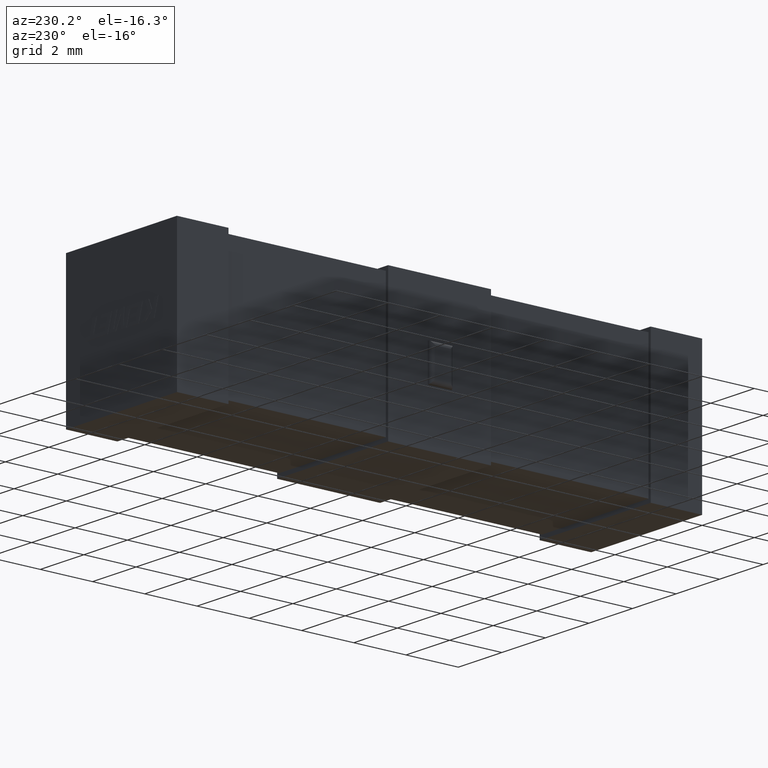
[diagram: clean part render]
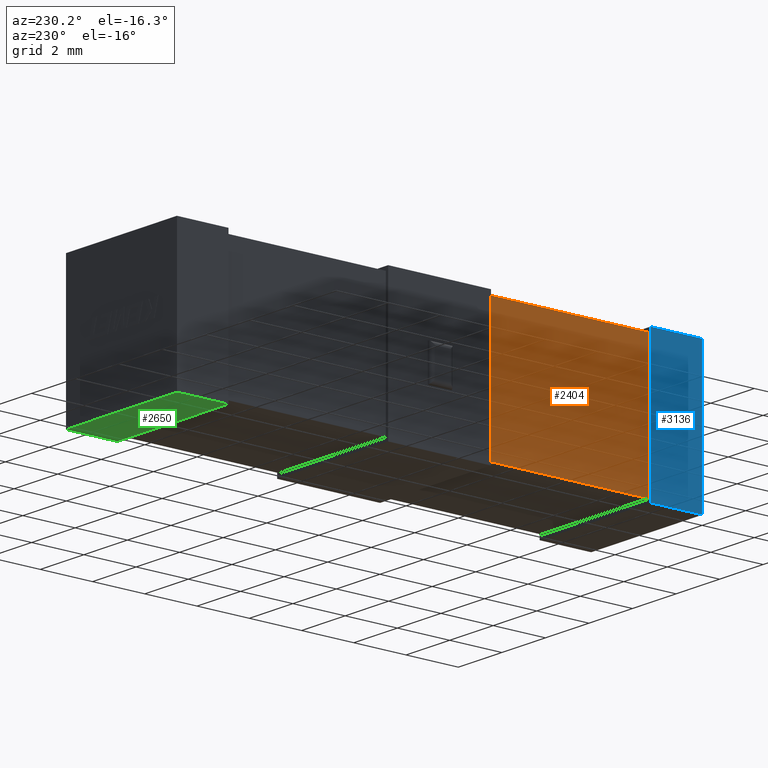
[diagram: same view with three faces highlighted in distinct colors, each labeled with its STEP entity id]
A machine part, auxiliary view with three faces highlighted in distinct colors.
Their STEP definitions:

[orange] entity #2404 — the highlighted planar face has unit normal (-1, 0, 0).
#43 = EDGE_CURVE ( 'NONE', #3292, #1647, #2640, .T. ) ;
#114 = LINE ( 'NONE', #1145, #2983 ) ;
#115 = DIRECTION ( 'NONE',  ( 0.0000000000000000000, 1.000000000000000000, 1.242048835984310900E-016 ) ) ;
#341 = VECTOR ( 'NONE', #115, 1000.000000000000000 ) ;
#485 = AXIS2_PLACEMENT_3D ( 'NONE', #3218, #612, #2172 ) ;
#612 = DIRECTION ( 'NONE',  ( -1.000000000000000000, 0.0000000000000000000, 0.0000000000000000000 ) ) ;
#620 = CARTESIAN_POINT ( 'NONE',  ( 0.09999999999999913100, 8.080199999999999600, 0.1500000000000028500 ) ) ;
#755 = CARTESIAN_POINT ( 'NONE',  ( 0.09999999999999913100, 8.080199999999999600, 5.250000000000000000 ) ) ;
#787 = EDGE_CURVE ( 'NONE', #1647, #3370, #2924, .T. ) ;
#866 = ORIENTED_EDGE ( 'NONE', *, *, #1671, .F. ) ;
#922 = EDGE_LOOP ( 'NONE', ( #866, #2451, #3340, #973 ) ) ;
#973 = ORIENTED_EDGE ( 'NONE', *, *, #43, .F. ) ;
#1056 = VERTEX_POINT ( 'NONE', #1254 ) ;
#1145 = CARTESIAN_POINT ( 'NONE',  ( 0.09999999999999913100, 8.080199999999999600, 5.250000000000000000 ) ) ;
#1210 = DIRECTION ( 'NONE',  ( 0.0000000000000000000, 8.503546450866705700E-017, -1.000000000000000000 ) ) ;
#1250 = CARTESIAN_POINT ( 'NONE',  ( 0.09999999999999913100, 1.969800000000000700, 0.1500000000000021000 ) ) ;
#1254 = CARTESIAN_POINT ( 'NONE',  ( 0.09999999999999913100, 8.080199999999999600, 5.250000000000000000 ) ) ;
#1647 = VERTEX_POINT ( 'NONE', #1250 ) ;
#1671 = EDGE_CURVE ( 'NONE', #1056, #3292, #2409, .T. ) ;
#1700 = VECTOR ( 'NONE', #3335, 1000.000000000000000 ) ;
#1949 = PLANE ( 'NONE',  #485 ) ;
#2136 = VECTOR ( 'NONE', #1210, 1000.000000000000000 ) ;
#2172 = DIRECTION ( 'NONE',  ( 0.0000000000000000000, 0.0000000000000000000, -1.000000000000000000 ) ) ;
#2181 = CARTESIAN_POINT ( 'NONE',  ( 0.09999999999999913100, 1.969800000000000200, 5.249999999999999100 ) ) ;
#2191 = DIRECTION ( 'NONE',  ( 0.0000000000000000000, 0.0000000000000000000, 1.000000000000000000 ) ) ;
#2404 = ADVANCED_FACE ( 'NONE', ( #2906 ), #1949, .T. ) ;
#2409 = LINE ( 'NONE', #755, #1700 ) ;
#2451 = ORIENTED_EDGE ( 'NONE', *, *, #2489, .F. ) ;
#2489 = EDGE_CURVE ( 'NONE', #3370, #1056, #114, .T. ) ;
#2640 = LINE ( 'NONE', #3019, #2136 ) ;
#2906 = FACE_OUTER_BOUND ( 'NONE', #922, .T. ) ;
#2924 = LINE ( 'NONE', #620, #341 ) ;
#2983 = VECTOR ( 'NONE', #2191, 1000.000000000000000 ) ;
#3019 = CARTESIAN_POINT ( 'NONE',  ( 0.09999999999999913100, 1.969800000000000200, 5.249999999999999100 ) ) ;
#3218 = CARTESIAN_POINT ( 'NONE',  ( 0.09999999999999913100, 0.0000000000000000000, 0.0000000000000000000 ) ) ;
#3283 = CARTESIAN_POINT ( 'NONE',  ( 0.09999999999999913100, 8.080199999999999600, 0.1500000000000028500 ) ) ;
#3292 = VERTEX_POINT ( 'NONE', #2181 ) ;
#3335 = DIRECTION ( 'NONE',  ( -0.0000000000000000000, -1.000000000000000000, -1.419484383982069700E-016 ) ) ;
#3340 = ORIENTED_EDGE ( 'NONE', *, *, #787, .F. ) ;
#3370 = VERTEX_POINT ( 'NONE', #3283 ) ;

[blue] entity #3136 — the highlighted planar face has unit normal (1, 0, 0).
#30 = CARTESIAN_POINT ( 'NONE',  ( 0.0000000000000000000, 0.0000000000000000000, 5.400000000000000400 ) ) ;
#41 = CARTESIAN_POINT ( 'NONE',  ( 0.0000000000000000000, 0.0000000000000000000, 5.400000000000000400 ) ) ;
#248 = CARTESIAN_POINT ( 'NONE',  ( 0.0000000000000000000, 0.0000000000000000000, 0.0000000000000000000 ) ) ;
#335 = CARTESIAN_POINT ( 'NONE',  ( 0.0000000000000000000, 0.0000000000000000000, 5.400000000000000400 ) ) ;
#404 = VECTOR ( 'NONE', #3207, 1000.000000000000000 ) ;
#489 = VECTOR ( 'NONE', #2649, 1000.000000000000000 ) ;
#520 = CARTESIAN_POINT ( 'NONE',  ( 2.220309139790134300E-015, 1.969800000000000700, 5.250000000000000000 ) ) ;
#583 = DIRECTION ( 'NONE',  ( 0.0000000000000000000, 0.0000000000000000000, -1.000000000000000000 ) ) ;
#600 = DIRECTION ( 'NONE',  ( -0.0000000000000000000, -1.000000000000000000, -0.0000000000000000000 ) ) ;
#622 = FACE_OUTER_BOUND ( 'NONE', #3107, .T. ) ;
#688 = VECTOR ( 'NONE', #600, 1000.000000000000000 ) ;
#739 = EDGE_CURVE ( 'NONE', #1340, #1512, #1201, .T. ) ;
#991 = LINE ( 'NONE', #335, #688 ) ;
#1083 = LINE ( 'NONE', #41, #404 ) ;
#1115 = ORIENTED_EDGE ( 'NONE', *, *, #3199, .F. ) ;
#1201 = LINE ( 'NONE', #520, #489 ) ;
#1216 = ORIENTED_EDGE ( 'NONE', *, *, #1304, .F. ) ;
#1304 = EDGE_CURVE ( 'NONE', #1512, #2354, #991, .T. ) ;
#1340 = VERTEX_POINT ( 'NONE', #1381 ) ;
#1352 = ORIENTED_EDGE ( 'NONE', *, *, #1814, .T. ) ;
#1381 = CARTESIAN_POINT ( 'NONE',  ( 2.220309139790134300E-015, 1.969800000000000700, 1.734723475976807100E-015 ) ) ;
#1382 = VERTEX_POINT ( 'NONE', #2418 ) ;
#1512 = VERTEX_POINT ( 'NONE', #2717 ) ;
#1518 = AXIS2_PLACEMENT_3D ( 'NONE', #1851, #2645, #583 ) ;
#1814 = EDGE_CURVE ( 'NONE', #1340, #1382, #1868, .T. ) ;
#1851 = CARTESIAN_POINT ( 'NONE',  ( 0.0000000000000000000, 0.0000000000000000000, 5.400000000000000400 ) ) ;
#1868 = LINE ( 'NONE', #248, #2281 ) ;
#1946 = ORIENTED_EDGE ( 'NONE', *, *, #739, .F. ) ;
#2281 = VECTOR ( 'NONE', #2573, 1000.000000000000000 ) ;
#2354 = VERTEX_POINT ( 'NONE', #30 ) ;
#2418 = CARTESIAN_POINT ( 'NONE',  ( 0.0000000000000000000, 0.0000000000000000000, 0.0000000000000000000 ) ) ;
#2573 = DIRECTION ( 'NONE',  ( -0.0000000000000000000, -1.000000000000000000, -0.0000000000000000000 ) ) ;
#2645 = DIRECTION ( 'NONE',  ( 1.000000000000000000, 0.0000000000000000000, 0.0000000000000000000 ) ) ;
#2649 = DIRECTION ( 'NONE',  ( -0.0000000000000000000, -0.0000000000000000000, 1.000000000000000000 ) ) ;
#2717 = CARTESIAN_POINT ( 'NONE',  ( 0.0000000000000000000, 1.969800000000000700, 5.400000000000000400 ) ) ;
#3107 = EDGE_LOOP ( 'NONE', ( #1946, #1352, #1115, #1216 ) ) ;
#3111 = PLANE ( 'NONE',  #1518 ) ;
#3136 = ADVANCED_FACE ( 'NONE', ( #622 ), #3111, .F. ) ;
#3199 = EDGE_CURVE ( 'NONE', #2354, #1382, #1083, .T. ) ;
#3207 = DIRECTION ( 'NONE',  ( -0.0000000000000000000, -0.0000000000000000000, -1.000000000000000000 ) ) ;

[green] entity #2650 — the highlighted planar face has unit normal (0, 0, -1).
#91 = CARTESIAN_POINT ( 'NONE',  ( 0.0000000000000000000, 20.10000000000000100, 0.0000000000000000000 ) ) ;
#198 = CARTESIAN_POINT ( 'NONE',  ( 0.0000000000000000000, 18.13019999999999900, 0.0000000000000000000 ) ) ;
#221 = DIRECTION ( 'NONE',  ( 0.0000000000000000000, 0.0000000000000000000, -1.000000000000000000 ) ) ;
#236 = ORIENTED_EDGE ( 'NONE', *, *, #1788, .F. ) ;
#405 = EDGE_CURVE ( 'NONE', #2815, #2941, #2494, .T. ) ;
#433 = CARTESIAN_POINT ( 'NONE',  ( 0.0000000000000000000, 0.0000000000000000000, 0.0000000000000000000 ) ) ;
#696 = DIRECTION ( 'NONE',  ( -0.0000000000000000000, -1.000000000000000000, -0.0000000000000000000 ) ) ;
#867 = AXIS2_PLACEMENT_3D ( 'NONE', #2295, #221, #2015 ) ;
#1008 = CARTESIAN_POINT ( 'NONE',  ( 5.100000000000000500, 0.0000000000000000000, 0.0000000000000000000 ) ) ;
#1233 = CARTESIAN_POINT ( 'NONE',  ( 5.100000000000000500, 18.13019999999999900, 1.734723475976807100E-015 ) ) ;
#1448 = FACE_OUTER_BOUND ( 'NONE', #3009, .T. ) ;
#1525 = CARTESIAN_POINT ( 'NONE',  ( 5.099999999999999600, 20.10000000000000100, 0.0000000000000000000 ) ) ;
#1537 = VECTOR ( 'NONE', #3254, 1000.000000000000000 ) ;
#1613 = EDGE_CURVE ( 'NONE', #2398, #2941, #2664, .T. ) ;
#1788 = EDGE_CURVE ( 'NONE', #2815, #3110, #3113, .T. ) ;
#1833 = LINE ( 'NONE', #91, #1537 ) ;
#1951 = VECTOR ( 'NONE', #696, 1000.000000000000000 ) ;
#1961 = VECTOR ( 'NONE', #3204, 1000.000000000000000 ) ;
#2015 = DIRECTION ( 'NONE',  ( -1.000000000000000000, 0.0000000000000000000, -0.0000000000000000000 ) ) ;
#2118 = CARTESIAN_POINT ( 'NONE',  ( 8.910775039955971800E-016, 18.13019999999999900, 1.734723475976807100E-015 ) ) ;
#2230 = ORIENTED_EDGE ( 'NONE', *, *, #3360, .F. ) ;
#2295 = CARTESIAN_POINT ( 'NONE',  ( 0.0000000000000000000, 0.0000000000000000000, 0.0000000000000000000 ) ) ;
#2398 = VERTEX_POINT ( 'NONE', #2741 ) ;
#2494 = LINE ( 'NONE', #2118, #1961 ) ;
#2529 = ORIENTED_EDGE ( 'NONE', *, *, #1613, .F. ) ;
#2650 = ADVANCED_FACE ( 'NONE', ( #1448 ), #2803, .T. ) ;
#2664 = LINE ( 'NONE', #433, #1951 ) ;
#2741 = CARTESIAN_POINT ( 'NONE',  ( 0.0000000000000000000, 20.10000000000000100, 0.0000000000000000000 ) ) ;
#2803 = PLANE ( 'NONE',  #867 ) ;
#2815 = VERTEX_POINT ( 'NONE', #1233 ) ;
#2941 = VERTEX_POINT ( 'NONE', #198 ) ;
#2992 = VECTOR ( 'NONE', #3089, 1000.000000000000000 ) ;
#3009 = EDGE_LOOP ( 'NONE', ( #236, #3258, #2529, #2230 ) ) ;
#3089 = DIRECTION ( 'NONE',  ( -4.315232527305490500E-017, 1.000000000000000000, 0.0000000000000000000 ) ) ;
#3110 = VERTEX_POINT ( 'NONE', #1525 ) ;
#3113 = LINE ( 'NONE', #1008, #2992 ) ;
#3204 = DIRECTION ( 'NONE',  ( -1.000000000000000000, -0.0000000000000000000, 0.0000000000000000000 ) ) ;
#3254 = DIRECTION ( 'NONE',  ( -1.000000000000000000, -0.0000000000000000000, -0.0000000000000000000 ) ) ;
#3258 = ORIENTED_EDGE ( 'NONE', *, *, #405, .T. ) ;
#3360 = EDGE_CURVE ( 'NONE', #3110, #2398, #1833, .T. ) ;